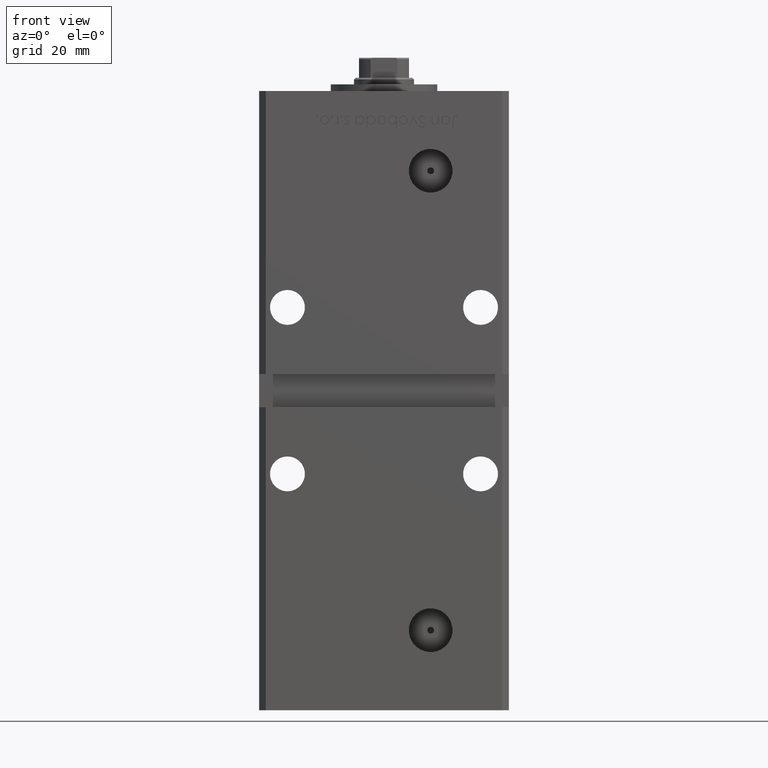
[diagram: clean part render]
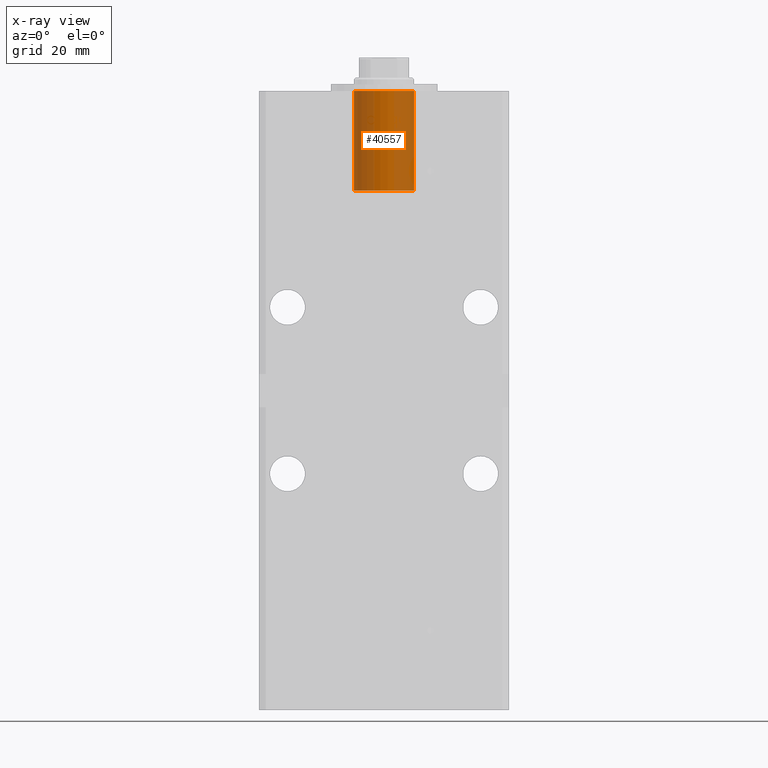
[diagram: x-ray — body ghosted, one internal face saturated and labeled with its STEP entity id]
A machine part, front view, then the same camera in x-ray: the body is ghosted and one INTERNAL B-rep face — a face not visible from any outside direction — is saturated and labeled: STEP entity #40557.
In plain terms, the highlighted cylindrical surface (edge-blend (fillet) strip) has radius 9 mm, axis along (0, 0, 1).
Its self-contained STEP definition (entity closure, byte-faithful):
#869 = ORIENTED_EDGE ( 'NONE', *, *, #6601, .T. ) ;
#1538 = VERTEX_POINT ( 'NONE', #10091 ) ;
#4819 = CARTESIAN_POINT ( 'NONE',  ( 8.999999999999996447, -6.938893903907228378E-15, -30.00000000000000000 ) ) ;
#6601 = EDGE_CURVE ( 'NONE', #1538, #44194, #34819, .T. ) ;
#8184 = EDGE_CURVE ( 'NONE', #46108, #44194, #46137, .T. ) ;
#10091 = CARTESIAN_POINT ( 'NONE',  ( -8.999999999999996447, -5.836711784674611255E-15, 0.000000000000000000 ) ) ;
#11103 = AXIS2_PLACEMENT_3D ( 'NONE', #25662, #21092, #50395 ) ;
#13031 = DIRECTION ( 'NONE',  ( -0.000000000000000000, -0.000000000000000000, 1.000000000000000000 ) ) ;
#16466 = FACE_OUTER_BOUND ( 'NONE', #49355, .T. ) ;
#18774 = VECTOR ( 'NONE', #13031, 1000.000000000000000 ) ;
#19840 = LINE ( 'NONE', #48618, #18774 ) ;
#19967 = CARTESIAN_POINT ( 'NONE',  ( 0.000000000000000000, -6.938893903907228378E-15, -30.00000000000000000 ) ) ;
#20357 = CARTESIAN_POINT ( 'NONE',  ( 0.000000000000000000, -6.938893903907228378E-15, 0.000000000000000000 ) ) ;
#21092 = DIRECTION ( 'NONE',  ( 0.000000000000000000, 0.000000000000000000, 1.000000000000000000 ) ) ;
#25662 = CARTESIAN_POINT ( 'NONE',  ( 0.000000000000000000, -6.938893903907228378E-15, -30.00000000000000000 ) ) ;
#25673 = CIRCLE ( 'NONE', #11103, 8.999999999999996447 ) ;
#25717 = CARTESIAN_POINT ( 'NONE',  ( 8.999999999999996447, -6.938893903907228378E-15, -30.00000000000000000 ) ) ;
#27151 = VERTEX_POINT ( 'NONE', #36985 ) ;
#28074 = ORIENTED_EDGE ( 'NONE', *, *, #8184, .F. ) ;
#34819 = CIRCLE ( 'NONE', #39118, 8.999999999999996447 ) ;
#34857 = VECTOR ( 'NONE', #45351, 1000.000000000000000 ) ;
#36985 = CARTESIAN_POINT ( 'NONE',  ( -8.999999999999996447, -5.836711784674611255E-15, -30.00000000000000000 ) ) ;
#39118 = AXIS2_PLACEMENT_3D ( 'NONE', #20357, #44046, #40008 ) ;
#39448 = CARTESIAN_POINT ( 'NONE',  ( 8.999999999999996447, -6.938893903907228378E-15, 0.000000000000000000 ) ) ;
#39551 = ORIENTED_EDGE ( 'NONE', *, *, #48913, .F. ) ;
#40008 = DIRECTION ( 'NONE',  ( 1.000000000000000000, 0.000000000000000000, 0.000000000000000000 ) ) ;
#40557 = ADVANCED_FACE ( 'NONE', ( #16466 ), #49274, .F. ) ;
#40998 = AXIS2_PLACEMENT_3D ( 'NONE', #19967, #41198, #48737 ) ;
#41198 = DIRECTION ( 'NONE',  ( -0.000000000000000000, -0.000000000000000000, 1.000000000000000000 ) ) ;
#44046 = DIRECTION ( 'NONE',  ( 0.000000000000000000, 0.000000000000000000, 1.000000000000000000 ) ) ;
#44194 = VERTEX_POINT ( 'NONE', #39448 ) ;
#45351 = DIRECTION ( 'NONE',  ( -0.000000000000000000, -0.000000000000000000, 1.000000000000000000 ) ) ;
#46108 = VERTEX_POINT ( 'NONE', #4819 ) ;
#46137 = LINE ( 'NONE', #25717, #34857 ) ;
#47334 = ORIENTED_EDGE ( 'NONE', *, *, #47808, .T. ) ;
#47808 = EDGE_CURVE ( 'NONE', #27151, #1538, #19840, .T. ) ;
#48618 = CARTESIAN_POINT ( 'NONE',  ( -8.999999999999996447, -5.836711784674611255E-15, -30.00000000000000000 ) ) ;
#48737 = DIRECTION ( 'NONE',  ( 1.000000000000000000, 0.000000000000000000, 0.000000000000000000 ) ) ;
#48913 = EDGE_CURVE ( 'NONE', #27151, #46108, #25673, .T. ) ;
#49274 = CYLINDRICAL_SURFACE ( 'NONE', #40998, 8.999999999999996447 ) ;
#49355 = EDGE_LOOP ( 'NONE', ( #39551, #47334, #869, #28074 ) ) ;
#50395 = DIRECTION ( 'NONE',  ( 1.000000000000000000, 0.000000000000000000, 0.000000000000000000 ) ) ;